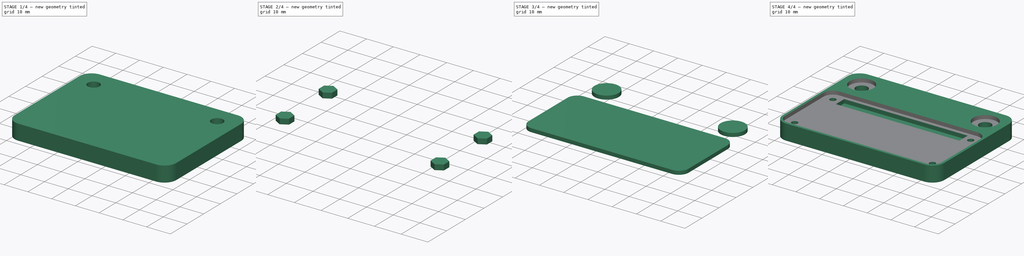
[diagram: build sequence overview — one tinted view per stage of 4, left to right]
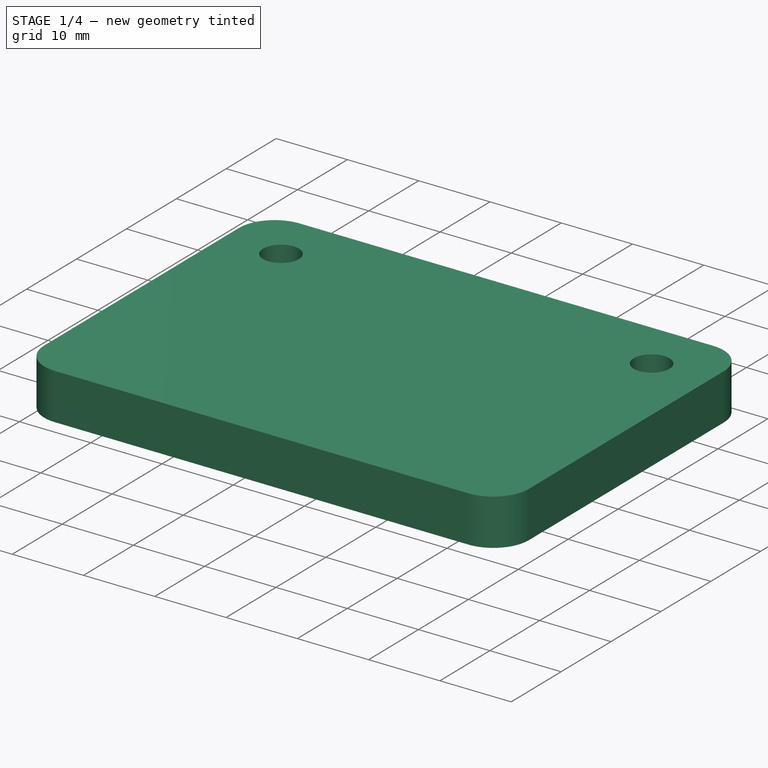
[diagram: stage 1 of 4 — iso view after this stage's code; geometry added in this stage tinted green]
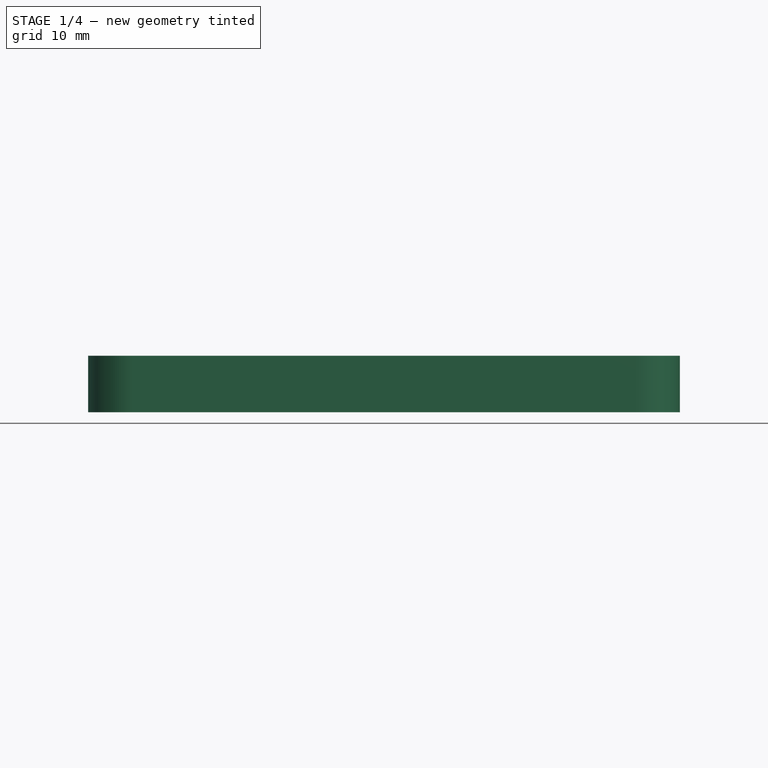
[diagram: stage 1 of 4 — front view after this stage's code; geometry added in this stage tinted green]
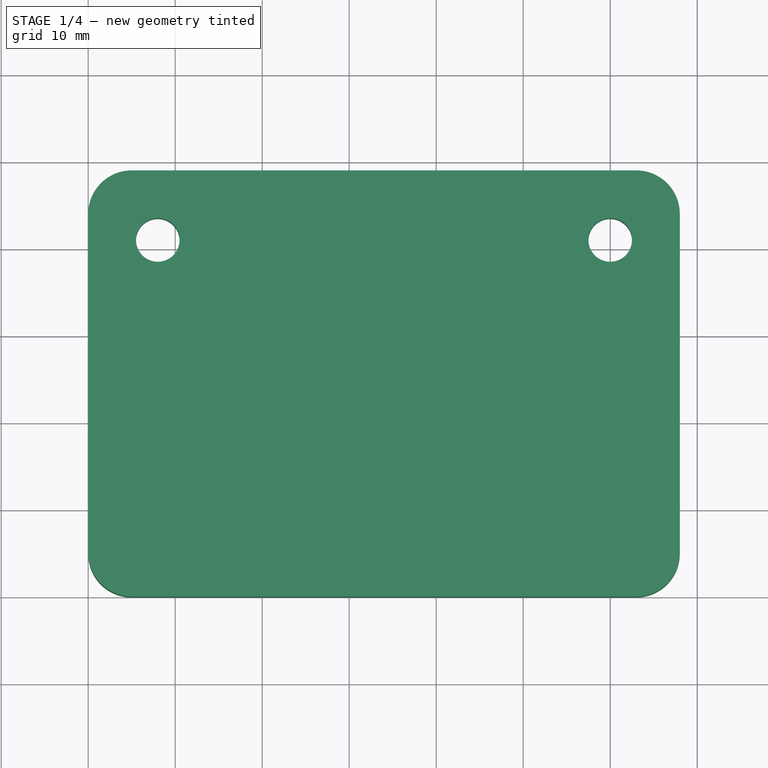
[diagram: stage 1 of 4 — top view after this stage's code; geometry added in this stage tinted green]
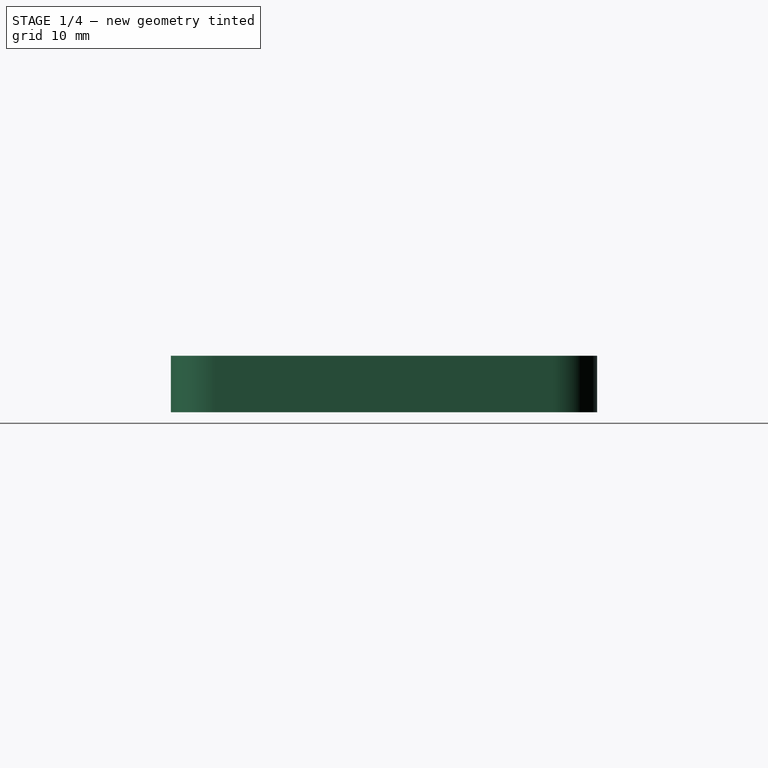
[diagram: stage 1 of 4 — right view after this stage's code; geometry added in this stage tinted green]
FCSTD DOCUMENT  (FreeCAD 0.20RUnknown)
Label: RaspberryPiZeroMount
License: All rights reserved
LicenseURL: http://en.wikipedia.org/wiki/All_rights_reserved
objects: Sketcher::SketchObject×6, Part::Face×6, Part::Extrusion×6, Part::Cut×5
note: 23 computed .brp shape members not serialized (recipe doc carries the construction recipe); baked Part::Feature solids carry a one-line shape summary decoded from their .brp

FEATURE [Sketcher::SketchObject] Sketch
  FullyConstrained = true
  sketch-geometry (8):
    g0: ArcOfCircle CenterX=5 CenterY=5 CenterZ=0 NormalX=0 NormalY=0 NormalZ=1 AngleXU=0 Radius=5 StartAngle=3.14159 EndAngle=4.71239
    g1: ArcOfCircle CenterX=63 CenterY=5 CenterZ=0 NormalX=0 NormalY=0 NormalZ=1 AngleXU=0 Radius=5 StartAngle=4.71239 EndAngle=6.28319
    g2: ArcOfCircle CenterX=63 CenterY=44 CenterZ=0 NormalX=0 NormalY=0 NormalZ=1 AngleXU=0 Radius=5 StartAngle=0 EndAngle=1.5708
    g3: ArcOfCircle CenterX=5 CenterY=44 CenterZ=0 NormalX=0 NormalY=0 NormalZ=1 AngleXU=0 Radius=5 StartAngle=1.5708 EndAngle=3.14159
    g4: LineSegment StartX=5 StartY=9e-16 StartZ=0 EndX=63 EndY=7.82e-14 EndZ=0
    g5: LineSegment StartX=68 StartY=5 StartZ=0 EndX=68 EndY=44 EndZ=0
    g6: LineSegment StartX=63 StartY=49 StartZ=0 EndX=5 EndY=49 EndZ=0
    g7: LineSegment StartX=0 StartY=44 StartZ=0 EndX=0 EndY=5 EndZ=0
  constraints (28):
    c: PointOnObject(g0,g-1)
    c: PointOnObject(g0,g-2)
    c: Horizontal(g0,g0)
    c: Vertical(g0,g0)
    c: PointOnObject(g1,g-1)
    c: PointOnObject(g3,g-2)
    c: Horizontal(g3,g3)
    c: Vertical(g3,g3)
    c: Horizontal(g3,g2)
    c: Horizontal(g0,g1)
    c: Vertical(g0,g3)
    c: Vertical(g1,g2)
    c: Horizontal(g2,g2)
    c: Vertical(g2,g2)
    c: Vertical(g1,g2)
    c: Horizontal(g2,g3)
    c: Distance(g3,g3) = 5
    c: Horizontal(g1,g1)
    c: DistanceX(g0,g1) = 58
    c: DistanceY(g1,g2) = 49
    c: Coincident(g3,g6)
    c: Coincident(g6,g2)
    c: Coincident(g5,g2)
    c: Coincident(g1,g5)
    c: Coincident(g4,g1)
    c: Coincident(g0,g4)
    c: Coincident(g0,g7)
    c: Coincident(g7,g3)
FEATURE [Part::Face] Face
  FaceMakerClass = Part::FaceMakerBullseye
  Sources = -> [Sketch]
FEATURE [Part::Extrusion] Extrude
  Base = -> Face
  Dir = (0,0,1)
  DirMode = 2
  FaceMakerClass = Part::FaceMakerBullseye
  LengthFwd = 6.5
  LengthRev = 0
  Solid = false
  Symmetric = false
FEATURE [Sketcher::SketchObject] Sketch001
  ExternalGeometry = -> [Extrude]
  FullyConstrained = true
  MapMode = 5
  Placement = pos=(0,0,6.5) rot=(0,0,1;0rad)
  Support = -> [Extrude]
  sketch-geometry (4):
    g0: Circle CenterX=8 CenterY=41 CenterZ=0 NormalX=0 NormalY=0 NormalZ=1 AngleXU=0 Radius=2.5
    g1: Circle CenterX=60 CenterY=41 CenterZ=0 NormalX=0 NormalY=0 NormalZ=1 AngleXU=0 Radius=2.5
    g2: LineSegment StartX=60 StartY=41 StartZ=0 EndX=68 EndY=41 EndZ=0
    g3: LineSegment StartX=8 StartY=41 StartZ=0 EndX=0 EndY=41 EndZ=0
  constraints (12):
    c: Diameter(g0) = 5
    c: Diameter(g1) = 5
    c: Horizontal(g0,g1)
    c: Coincident(g2,g1)
    c: PointOnObject(g2,g-4)
    c: Horizontal(g2)
    c: Coincident(g3,g0)
    c: PointOnObject(g3,g-2)
    c: Horizontal(g3)
    c: Equal(g3,g2)
    c: DistanceX(g3,g3) = 8
    c: DistanceY(g0,g-3) = 8
FEATURE [Part::Face] Face001
  FaceMakerClass = Part::FaceMakerBullseye
  Sources = -> [Sketch001]
FEATURE [Part::Extrusion] Extrude001
  Base = -> Face001
  Dir = (0,0,1)
  DirMode = 2
  FaceMakerClass = Part::FaceMakerBullseye
  LengthFwd = -10
  LengthRev = 0
  Solid = false
  Symmetric = false
FEATURE [Part::Cut] Cut
  Base = -> Extrude
  Tool = -> Extrude001
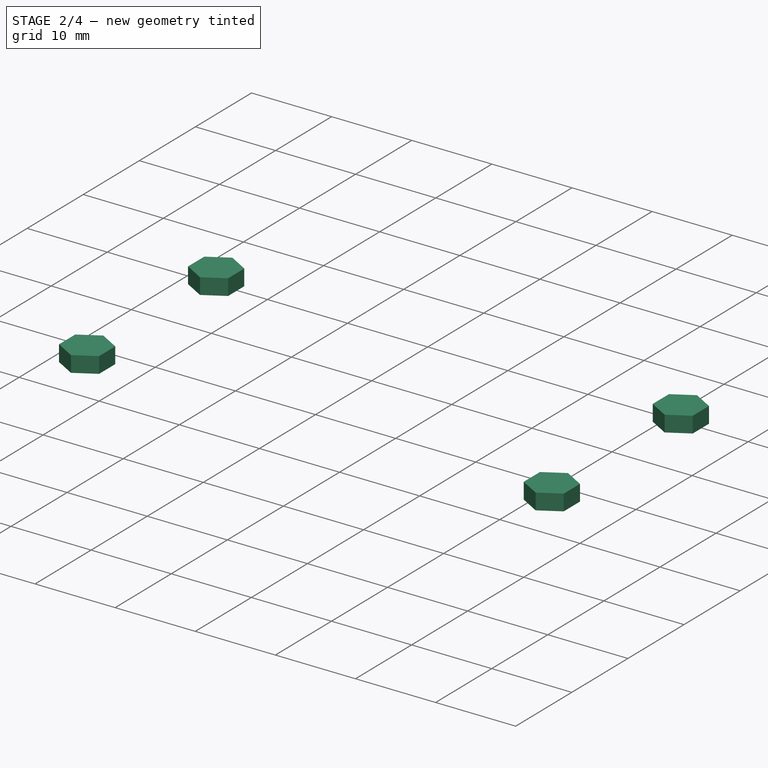
[diagram: stage 2 of 4 — iso view after this stage's code; geometry added in this stage tinted green]
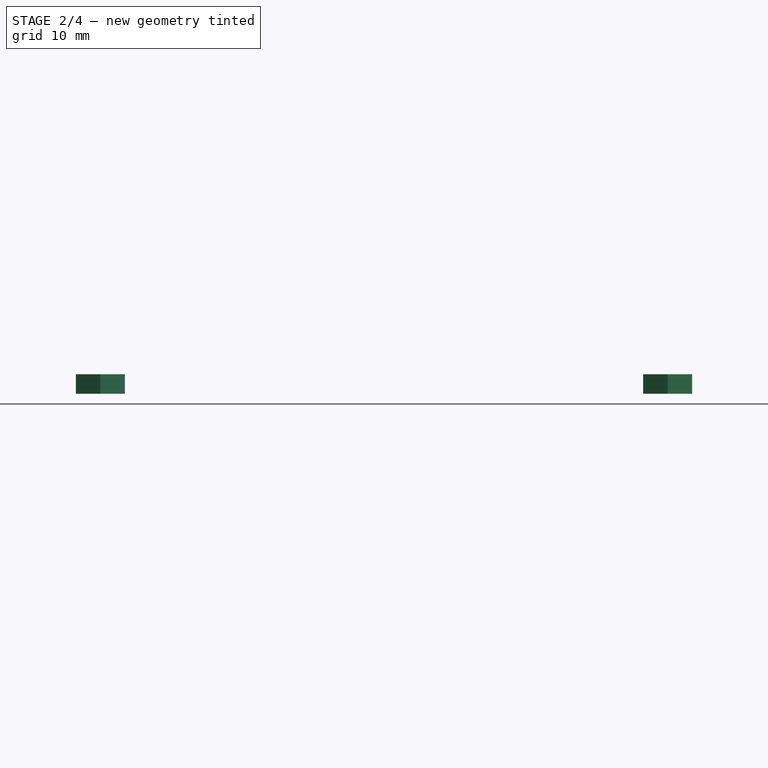
[diagram: stage 2 of 4 — front view after this stage's code; geometry added in this stage tinted green]
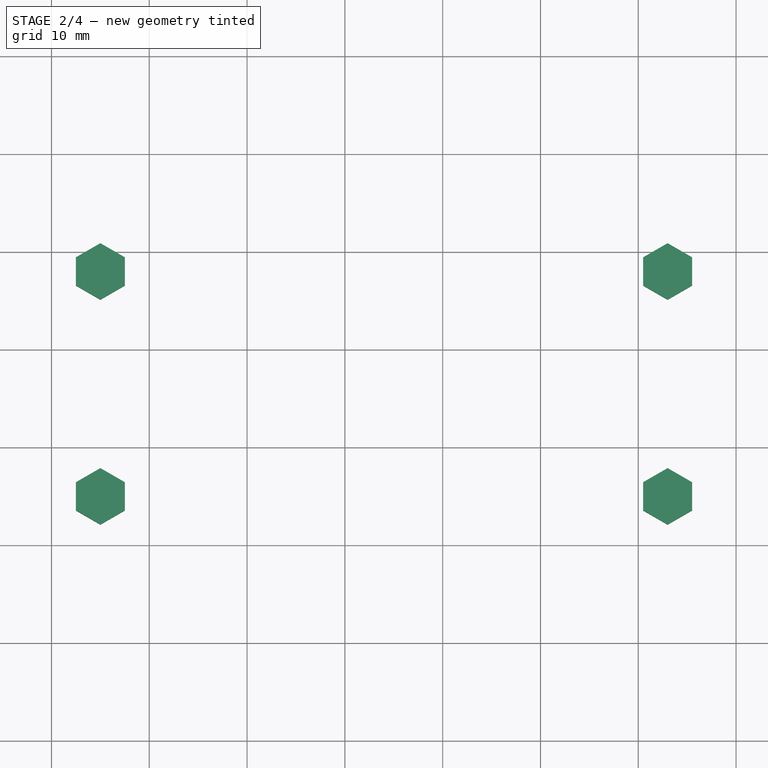
[diagram: stage 2 of 4 — top view after this stage's code; geometry added in this stage tinted green]
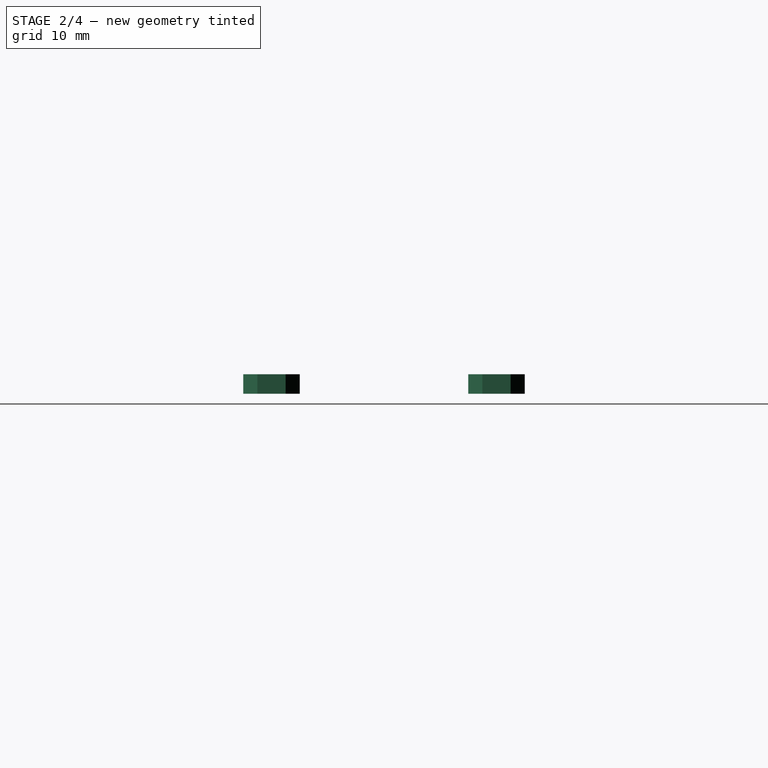
[diagram: stage 2 of 4 — right view after this stage's code; geometry added in this stage tinted green]
FEATURE [Sketcher::SketchObject] Sketch002
  ExternalGeometry = -> [Cut]
  FullyConstrained = true
  MapMode = 5
  Placement = pos=(0,0,6.5) rot=(0,0,1;0rad)
  Support = -> [Cut]
  sketch-geometry (4):
    g0: Circle CenterX=5 CenterY=28 CenterZ=0 NormalX=0 NormalY=0 NormalZ=1 AngleXU=0 Radius=1.25
    g1: Circle CenterX=5 CenterY=5 CenterZ=0 NormalX=0 NormalY=0 NormalZ=1 AngleXU=0 Radius=1.25
    g2: Circle CenterX=63 CenterY=5 CenterZ=0 NormalX=0 NormalY=0 NormalZ=1 AngleXU=0 Radius=1.25
    g3: Circle CenterX=63 CenterY=28 CenterZ=0 NormalX=0 NormalY=0 NormalZ=1 AngleXU=0 Radius=1.25
  constraints (11):
    c: Diameter(g0) = 2.5
    c: Diameter(g3) = 2.5
    c: Diameter(g1) = 2.5
    c: Diameter(g2) = 2.5
    c: Horizontal(g0,g3)
    c: Horizontal(g1,g2)
    c: Vertical(g2,g3)
    c: Vertical(g0,g1)
    c: DistanceY(g1,g0) = 23
    c: DistanceX(g1,g2) = 58
    c: Coincident(g2,g-4)
FEATURE [Part::Face] Face002
  FaceMakerClass = Part::FaceMakerBullseye
  Sources = -> [Sketch002]
FEATURE [Part::Extrusion] Extrude002
  Base = -> Face002
  Dir = (0,0,1)
  DirMode = 2
  FaceMakerClass = Part::FaceMakerBullseye
  LengthFwd = -10
  LengthRev = 0
  Solid = false
  Symmetric = false
FEATURE [Part::Cut] Cut001
  Base = -> Cut
  Tool = -> Extrude002
FEATURE [Sketcher::SketchObject] Sketch003
  ExternalGeometry = -> [Cut001]
  FullyConstrained = true
  MapMode = 5
  Placement = pos=(0,0,0) rot=(1,0,0;3.14159rad)
  Support = -> [Cut001]
  sketch-geometry (28):
    g0: LineSegment StartX=7.5 StartY=-6.44338 StartZ=0 EndX=7.5 EndY=-3.55662 EndZ=0
    g1: LineSegment StartX=7.5 StartY=-3.55662 StartZ=0 EndX=5 EndY=-2.11325 EndZ=0
    g2: LineSegment StartX=5 StartY=-2.11325 StartZ=0 EndX=2.5 EndY=-3.55662 EndZ=0
    g3: LineSegment StartX=2.5 StartY=-3.55662 StartZ=0 EndX=2.5 EndY=-6.44338 EndZ=0
    g4: LineSegment StartX=2.5 StartY=-6.44338 StartZ=0 EndX=5 EndY=-7.88675 EndZ=0
    g5: LineSegment StartX=5 StartY=-7.88675 StartZ=0 EndX=7.5 EndY=-6.44338 EndZ=0
    g6: Circle CenterX=5 CenterY=-5 CenterZ=0 NormalX=0 NormalY=0 NormalZ=1 AngleXU=0 Radius=2.88675
    g7: LineSegment StartX=5 StartY=-30.8868 StartZ=0 EndX=7.5 EndY=-29.4434 EndZ=0
    g8: LineSegment StartX=7.5 StartY=-29.4434 StartZ=0 EndX=7.5 EndY=-26.5566 EndZ=0
    g9: LineSegment StartX=7.5 StartY=-26.5566 StartZ=0 EndX=5 EndY=-25.1132 EndZ=0
    g10: LineSegment StartX=5 StartY=-25.1132 StartZ=0 EndX=2.5 EndY=-26.5566 EndZ=0
    g11: LineSegment StartX=2.5 StartY=-26.5566 StartZ=0 EndX=2.5 EndY=-29.4434 EndZ=0
    g12: LineSegment StartX=2.5 StartY=-29.4434 StartZ=0 EndX=5 EndY=-30.8868 EndZ=0
    g13: Circle CenterX=5 CenterY=-28 CenterZ=0 NormalX=0 NormalY=0 NormalZ=1 AngleXU=0 Radius=2.88675
    g14: LineSegment StartX=63 StartY=-30.8868 StartZ=0 EndX=65.5 EndY=-29.4434 EndZ=0
    g15: LineSegment StartX=65.5 StartY=-29.4434 StartZ=0 EndX=65.5 EndY=-26.5566 EndZ=0
    g16: LineSegment StartX=65.5 StartY=-26.5566 StartZ=0 EndX=63 EndY=-25.1132 EndZ=0
    g17: LineSegment StartX=63 StartY=-25.1132 StartZ=0 EndX=60.5 EndY=-26.5566 EndZ=0
    g18: LineSegment StartX=60.5 StartY=-26.5566 StartZ=0 EndX=60.5 EndY=-29.4434 EndZ=0
    g19: LineSegment StartX=60.5 StartY=-29.4434 StartZ=0 EndX=63 EndY=-30.8868 EndZ=0
    g20: Circle CenterX=63 CenterY=-28 CenterZ=0 NormalX=0 NormalY=0 NormalZ=1 AngleXU=0 Radius=2.88675
    g21: LineSegment StartX=63 StartY=-7.88675 StartZ=0 EndX=65.5 EndY=-6.44338 EndZ=0
    g22: LineSegment StartX=65.5 StartY=-6.44338 StartZ=0 EndX=65.5 EndY=-3.55662 EndZ=0
    g23: LineSegment StartX=65.5 StartY=-3.55662 StartZ=0 EndX=63 EndY=-2.11325 EndZ=0
    g24: LineSegment StartX=63 StartY=-2.11325 StartZ=0 EndX=60.5 EndY=-3.55662 EndZ=0
    g25: LineSegment StartX=60.5 StartY=-3.55662 StartZ=0 EndX=60.5 EndY=-6.44338 EndZ=0
    g26: LineSegment StartX=60.5 StartY=-6.44338 StartZ=0 EndX=63 EndY=-7.88675 EndZ=0
    g27: Circle CenterX=63 CenterY=-5 CenterZ=0 NormalX=0 NormalY=0 NormalZ=1 AngleXU=0 Radius=2.88675
  constraints (64):
    c: Coincident(g0,g1)
    c: Coincident(g1,g2)
    c: Coincident(g2,g3)
    c: Coincident(g3,g4)
    c: Coincident(g4,g5)
    c: Coincident(g5,g0)
    c: Equal(g0, g1-g5) x5
    c: PointOnObject(g0,g6)
    c: PointOnObject(g1,g6)
    c: PointOnObject(g2,g6)
    c: PointOnObject(g3,g6)
    c: PointOnObject(g4,g6)
    c: PointOnObject(g5,g6)
    c: Coincident(g7,g8)
    c: Coincident(g8,g9)
    c: Coincident(g9,g10)
    c: Coincident(g10,g11)
    c: Coincident(g11,g12)
    c: Coincident(g12,g7)
    c: Equal(g7, g8-g12) x5
    c: PointOnObject(g7,g13)
    c: PointOnObject(g8,g13)
    c: PointOnObject(g9,g13)
    c: PointOnObject(g10,g13)
    c: PointOnObject(g11,g13)
    c: PointOnObject(g12,g13)
    c: Coincident(g14,g15)
    c: Coincident(g15,g16)
    c: Coincident(g16,g17)
    c: Coincident(g17,g18)
    c: Coincident(g18,g19)
    c: Coincident(g19,g14)
    c: Equal(g14, g15-g19) x5
    c: PointOnObject(g14,g20)
    c: PointOnObject(g15,g20)
    c: PointOnObject(g16,g20)
    c: PointOnObject(g17,g20)
    c: PointOnObject(g18,g20)
    c: PointOnObject(g19,g20)
    c: Coincident(g21,g22)
    c: Coincident(g22,g23)
    c: Coincident(g23,g24)
    c: Coincident(g24,g25)
    c: Coincident(g25,g26)
    c: Coincident(g26,g21)
    c: Equal(g21, g22-g26) x5
    c: PointOnObject(g21,g27)
    c: PointOnObject(g22,g27)
    c: PointOnObject(g23,g27)
    c: PointOnObject(g24,g27)
    c: PointOnObject(g25,g27)
    c: PointOnObject(g26,g27)
    c: Vertical(g4,g1)
    c: Vertical(g21,g23)
    c: Vertical(g7,g9)
    c: Vertical(g14,g16)
    c: DistanceX(g17,g15) = 5
    c: DistanceX(g10,g8) = 5
    c: DistanceX(g2,g0) = 5
    c: DistanceX(g24,g22) = 5
    c: Coincident(g27,g-6)
    c: Coincident(g20,g-5)
    c: Coincident(g13,g-4)
    c: Coincident(g6,g-3)
FEATURE [Part::Face] Face003
  FaceMakerClass = Part::FaceMakerBullseye
  Sources = -> [Sketch003]
FEATURE [Part::Extrusion] Extrude003
  Base = -> Face003
  Dir = (0,0,1)
  DirMode = 2
  FaceMakerClass = Part::FaceMakerBullseye
  LengthFwd = 2
  LengthRev = 0
  Solid = false
  Symmetric = false
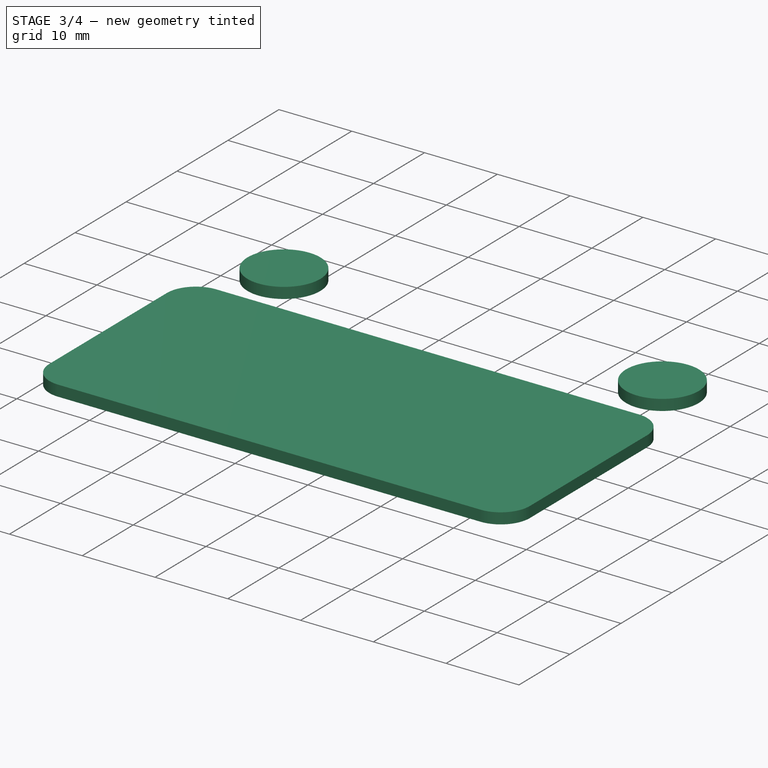
[diagram: stage 3 of 4 — iso view after this stage's code; geometry added in this stage tinted green]
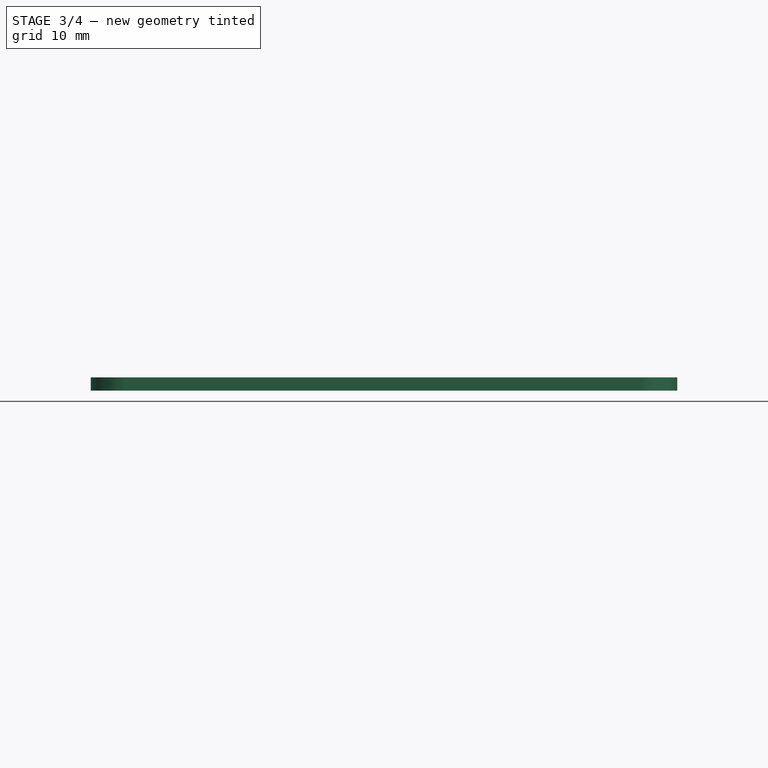
[diagram: stage 3 of 4 — front view after this stage's code; geometry added in this stage tinted green]
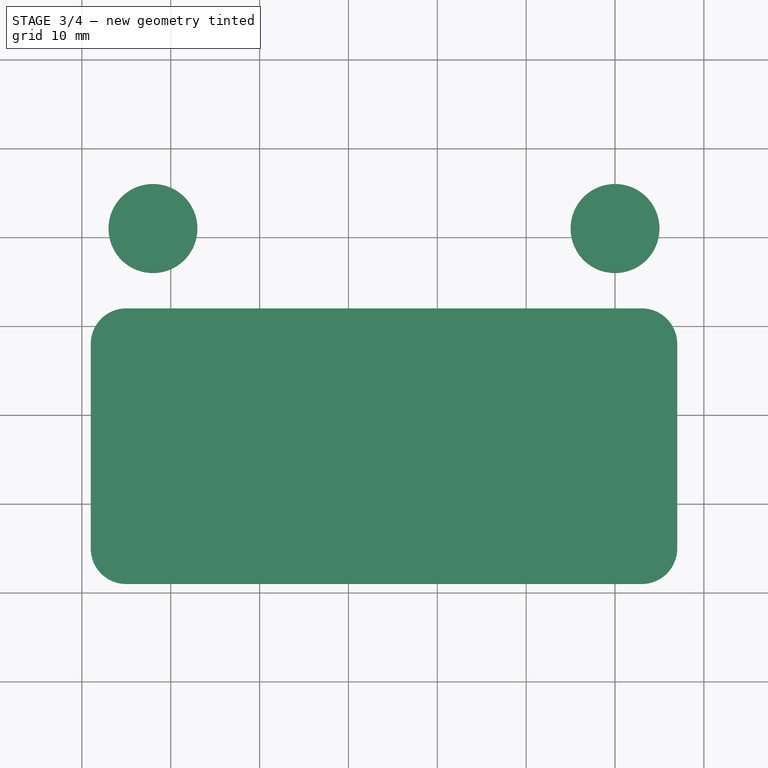
[diagram: stage 3 of 4 — top view after this stage's code; geometry added in this stage tinted green]
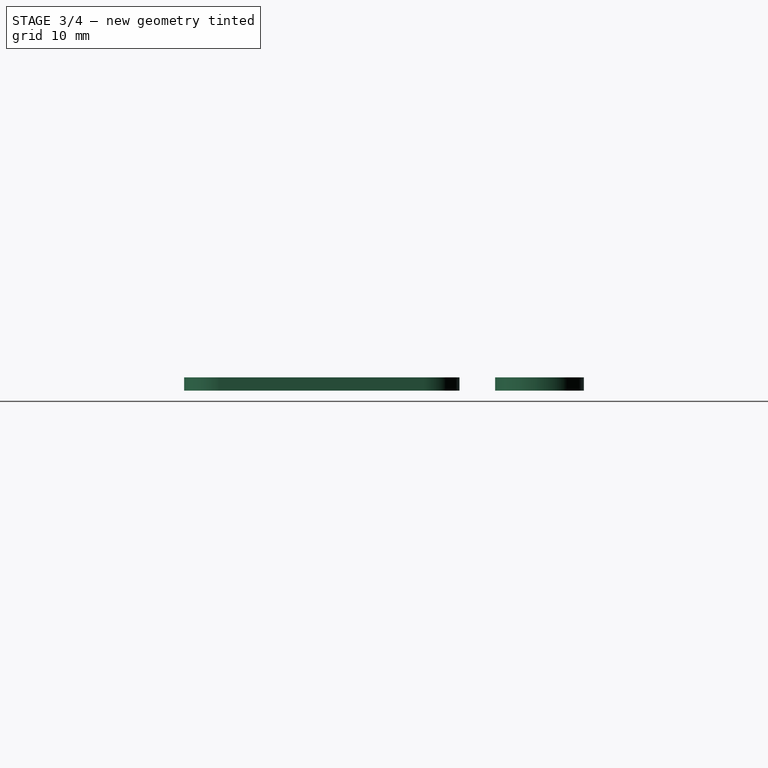
[diagram: stage 3 of 4 — right view after this stage's code; geometry added in this stage tinted green]
FEATURE [Part::Cut] Cut002
  Base = -> Cut001
  Tool = -> Extrude003
FEATURE [Sketcher::SketchObject] Sketch004
  ExternalGeometry = -> [Sketch002,Sketch001]
  FullyConstrained = true
  MapMode = 5
  Placement = pos=(0,0,6.5) rot=(0,0,1;0rad)
  Support = -> [Cut002]
  sketch-geometry (10):
    g0: ArcOfCircle CenterX=5 CenterY=28 CenterZ=0 NormalX=0 NormalY=0 NormalZ=1 AngleXU=0 Radius=4 StartAngle=1.5708 EndAngle=3.14159
    g1: ArcOfCircle CenterX=5 CenterY=5 CenterZ=0 NormalX=0 NormalY=0 NormalZ=1 AngleXU=0 Radius=4 StartAngle=3.14159 EndAngle=4.71239
    g2: ArcOfCircle CenterX=63 CenterY=5 CenterZ=0 NormalX=0 NormalY=0 NormalZ=1 AngleXU=0 Radius=4 StartAngle=4.71239 EndAngle=6.28319
    g3: ArcOfCircle CenterX=63 CenterY=28 CenterZ=0 NormalX=0 NormalY=0 NormalZ=1 AngleXU=0 Radius=4 StartAngle=0 EndAngle=1.5708
    g4: LineSegment StartX=63 StartY=32 StartZ=0 EndX=5 EndY=32 EndZ=0
    g5: LineSegment StartX=1 StartY=28 StartZ=0 EndX=1 EndY=5 EndZ=0
    g6: LineSegment StartX=5 StartY=1 StartZ=0 EndX=63 EndY=1 EndZ=0
    g7: LineSegment StartX=67 StartY=5 StartZ=0 EndX=67 EndY=28 EndZ=0
    g8: Circle CenterX=8 CenterY=41 CenterZ=0 NormalX=0 NormalY=0 NormalZ=1 AngleXU=0 Radius=5
    g9: Circle CenterX=60 CenterY=41 CenterZ=0 NormalX=0 NormalY=0 NormalZ=1 AngleXU=0 Radius=5
  constraints (28):
    c: Coincident(g0,g-3)
    c: Coincident(g1,g-4)
    c: Coincident(g2,g-5)
    c: Coincident(g3,g-6)
    c: Horizontal(g3,g3)
    c: Vertical(g3,g3)
    c: DistanceX(g3,g3) = 4
    c: Horizontal(g2,g2)
    c: Vertical(g2,g2)
    c: Vertical(g1,g1)
    c: Horizontal(g1,g1)
    c: Vertical(g0,g0)
    c: Horizontal(g0,g0)
    c: Coincident(g4,g3)
    c: Coincident(g4,g0)
    c: Horizontal(g4)
    c: Coincident(g5,g0)
    c: Coincident(g5,g1)
    c: Vertical(g5)
    c: Coincident(g6,g1)
    c: Coincident(g6,g2)
    c: Horizontal(g6)
    c: Coincident(g7,g2)
    c: Coincident(g7,g3)
    c: Coincident(g8,g-7)
    c: Coincident(g9,g-8)
    c: Diameter(g8) = 10
    c: Diameter(g9) = 10
FEATURE [Part::Face] Face004
  FaceMakerClass = Part::FaceMakerBullseye
  Sources = -> [Sketch004]
FEATURE [Part::Extrusion] Extrude004
  Base = -> Face004
  Dir = (0,0,1)
  DirMode = 2
  FaceMakerClass = Part::FaceMakerBullseye
  LengthFwd = -1.5
  LengthRev = 0
  Solid = false
  Symmetric = false
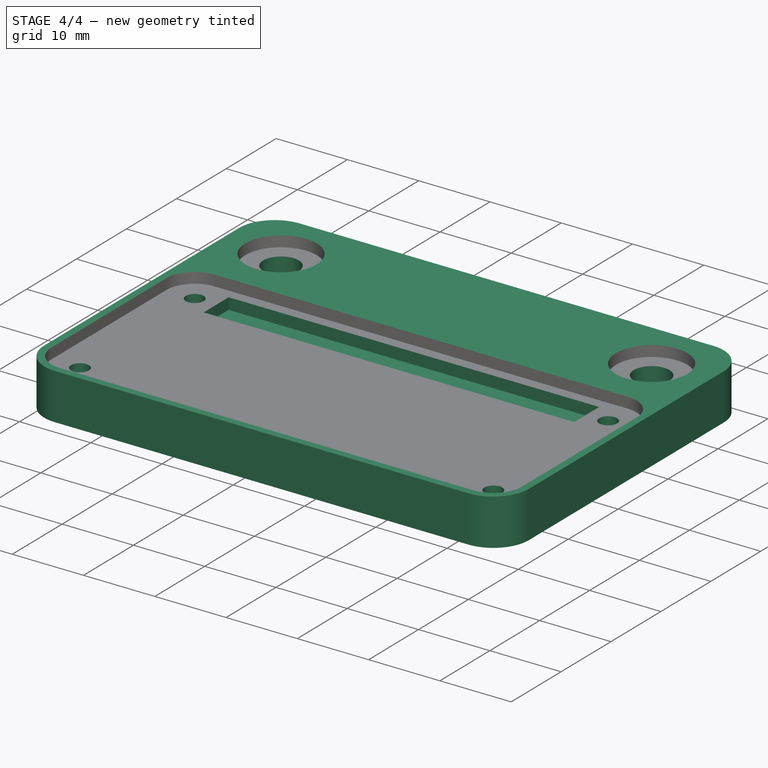
[diagram: stage 4 of 4 — iso view after this stage's code; geometry added in this stage tinted green]
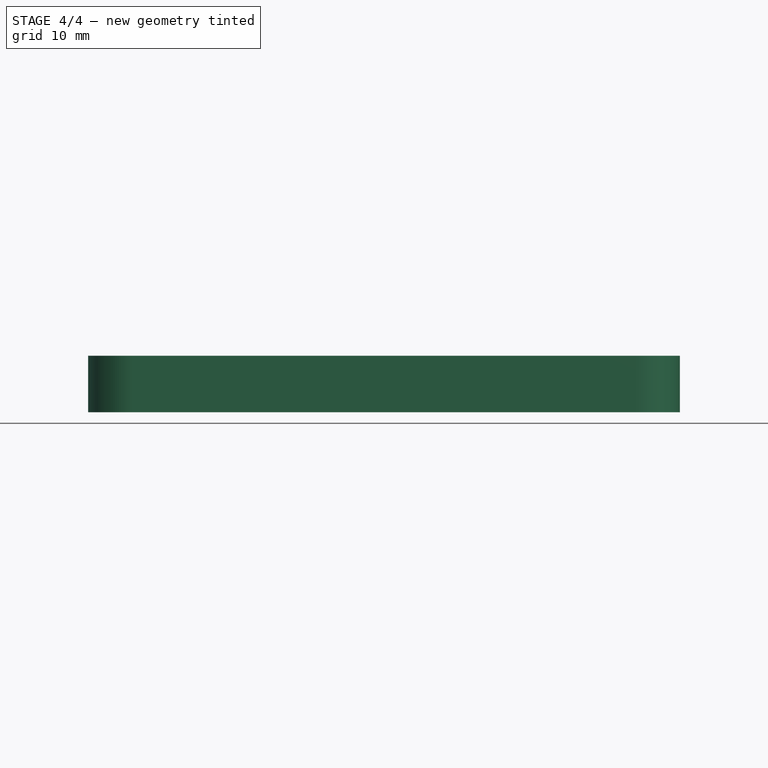
[diagram: stage 4 of 4 — front view after this stage's code; geometry added in this stage tinted green]
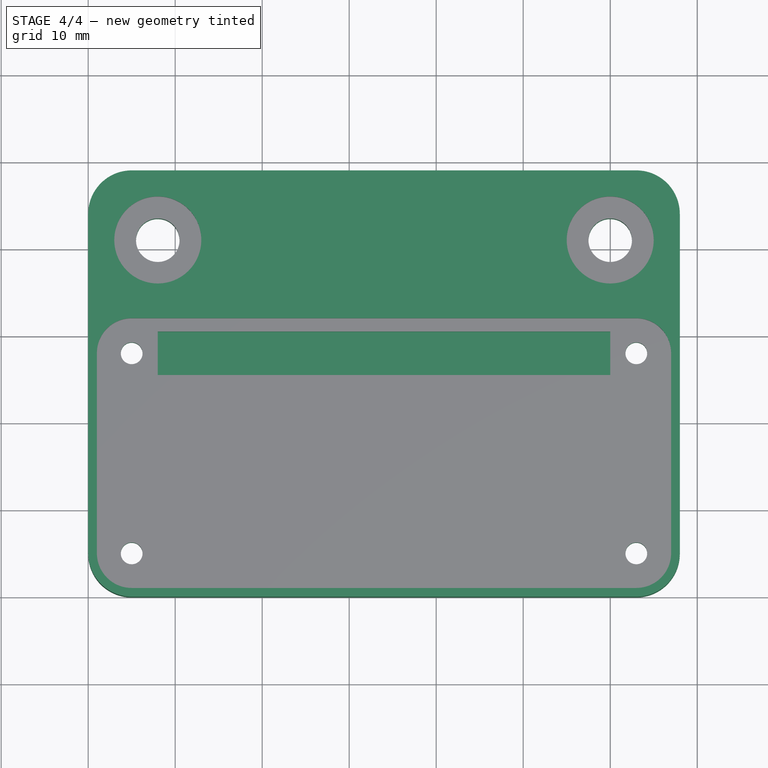
[diagram: stage 4 of 4 — top view after this stage's code; geometry added in this stage tinted green]
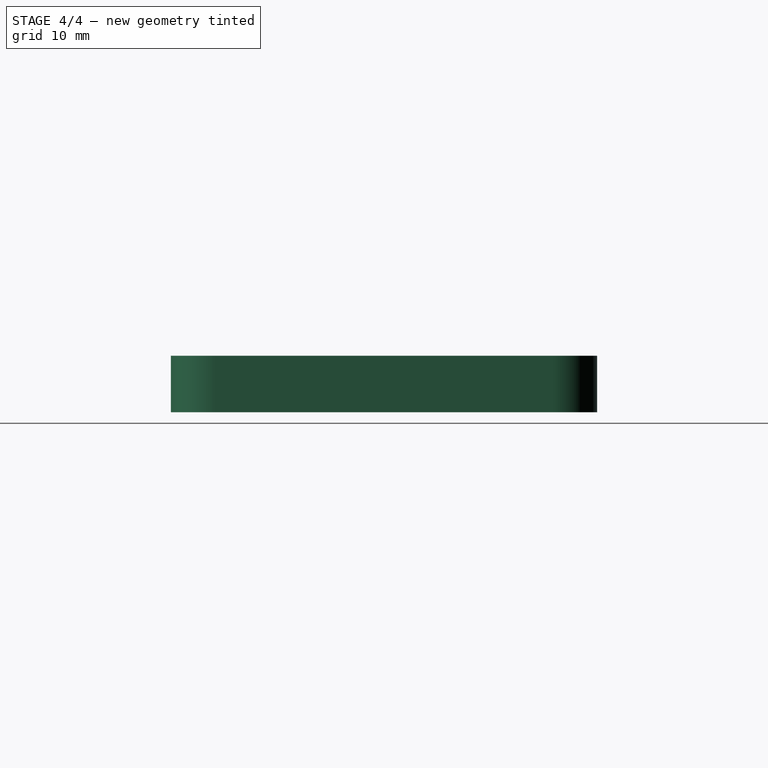
[diagram: stage 4 of 4 — right view after this stage's code; geometry added in this stage tinted green]
FEATURE [Part::Cut] Cut003
  Base = -> Cut002
  Tool = -> Extrude004
FEATURE [Sketcher::SketchObject] Sketch005
  ExternalGeometry = -> [Sketch002]
  FullyConstrained = true
  MapMode = 5
  Placement = pos=(0,0,5) rot=(0,0,1;0rad)
  Support = -> [Cut003]
  sketch-geometry (8):
    g0: LineSegment StartX=8 StartY=30.5 StartZ=0 EndX=60 EndY=30.5 EndZ=0
    g1: LineSegment StartX=60 StartY=30.5 StartZ=0 EndX=60 EndY=25.5 EndZ=0
    g2: LineSegment StartX=60 StartY=25.5 StartZ=0 EndX=8 EndY=25.5 EndZ=0
    g3: LineSegment StartX=8 StartY=25.5 StartZ=0 EndX=8 EndY=30.5 EndZ=0
    g4: LineSegment StartX=5 StartY=28 StartZ=0 EndX=8 EndY=28 EndZ=0
    g5: LineSegment StartX=63 StartY=28 StartZ=0 EndX=60 EndY=28 EndZ=0
    g6: LineSegment StartX=8 StartY=28 StartZ=0 EndX=8 EndY=30.5 EndZ=0
    g7: LineSegment StartX=8 StartY=28 StartZ=0 EndX=8 EndY=25.5 EndZ=0
  constraints (22):
    c: Coincident(g0,g1)
    c: Coincident(g1,g2)
    c: Coincident(g2,g3)
    c: Coincident(g3,g0)
    c: Horizontal(g0)
    c: Horizontal(g2)
    c: Vertical(g1)
    c: Vertical(g3)
    c: DistanceY(g1,g1) = 5
    c: DistanceX(g0,g0) = 52
    c: Coincident(g4,g-3)
    c: PointOnObject(g4,g3)
    c: Horizontal(g4)
    c: Coincident(g5,g-4)
    c: PointOnObject(g5,g1)
    c: Horizontal(g5)
    c: Coincident(g6,g4)
    c: Coincident(g7,g4)
    c: Equal(g6,g7)
    c: Coincident(g7,g2)
    c: Coincident(g6,g0)
    c: Equal(g4,g5)
FEATURE [Part::Face] Face005
  FaceMakerClass = Part::FaceMakerBullseye
  Sources = -> [Sketch005]
FEATURE [Part::Extrusion] Extrude005
  Base = -> Face005
  Dir = (0,0,1)
  DirMode = 2
  FaceMakerClass = Part::FaceMakerBullseye
  LengthFwd = -1.6
  LengthRev = 0
  Solid = false
  Symmetric = false
FEATURE [Part::Cut] Cut004
  Base = -> Cut003
  Tool = -> Extrude005
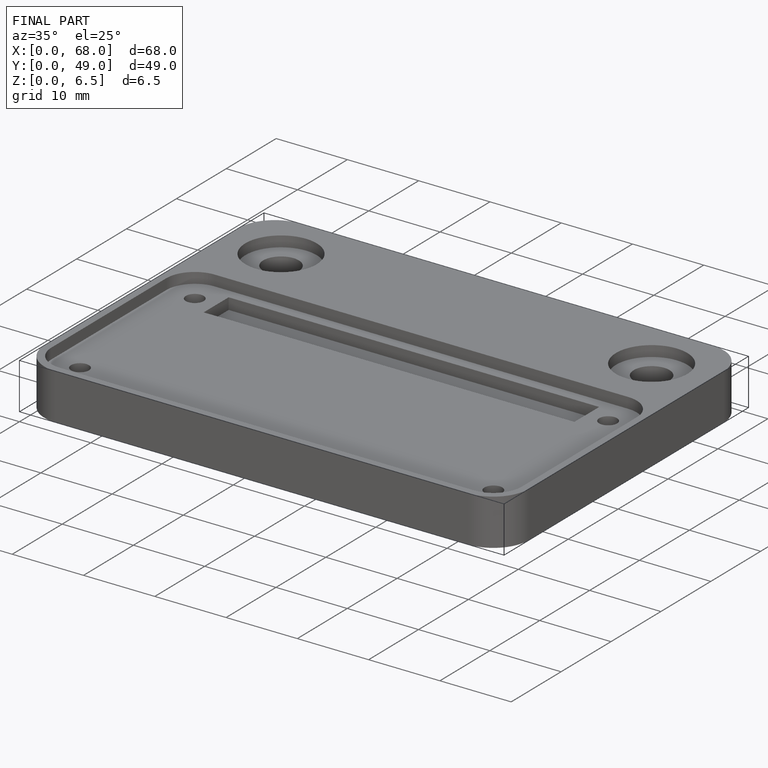
[diagram: finished part — iso view with bounding-box wireframe]
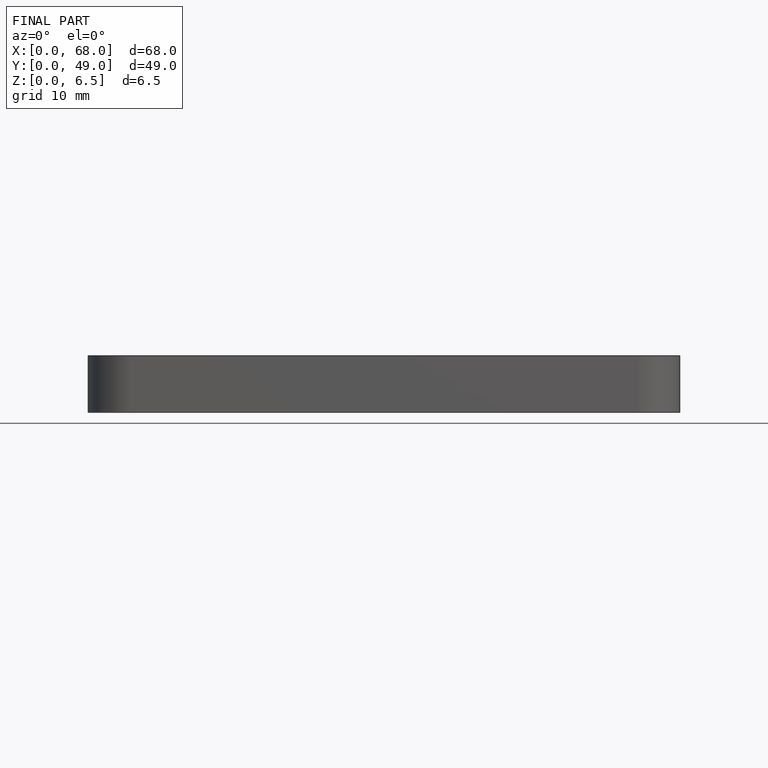
[diagram: finished part — front view with bounding-box wireframe]
